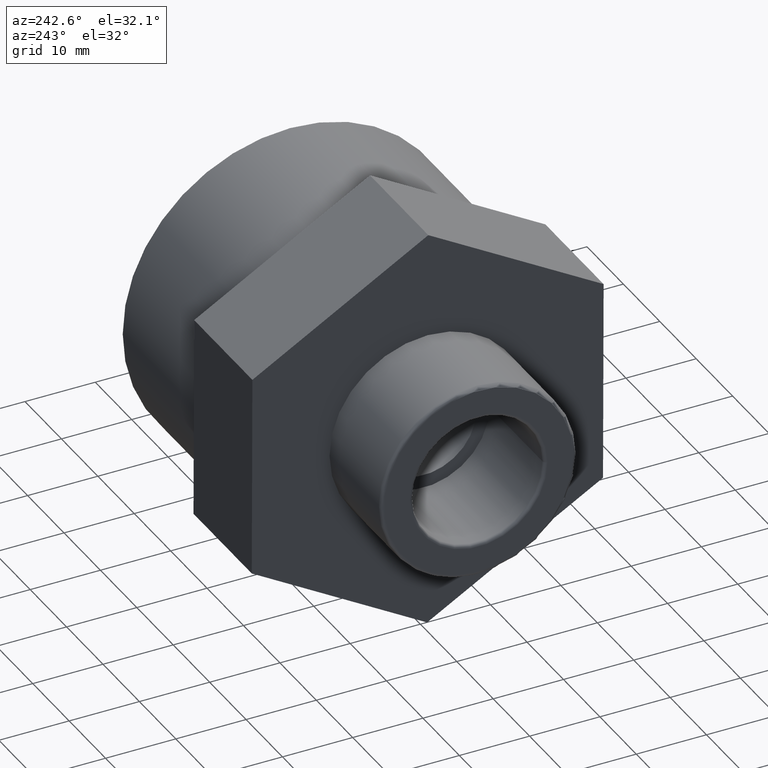
[diagram: clean part render]
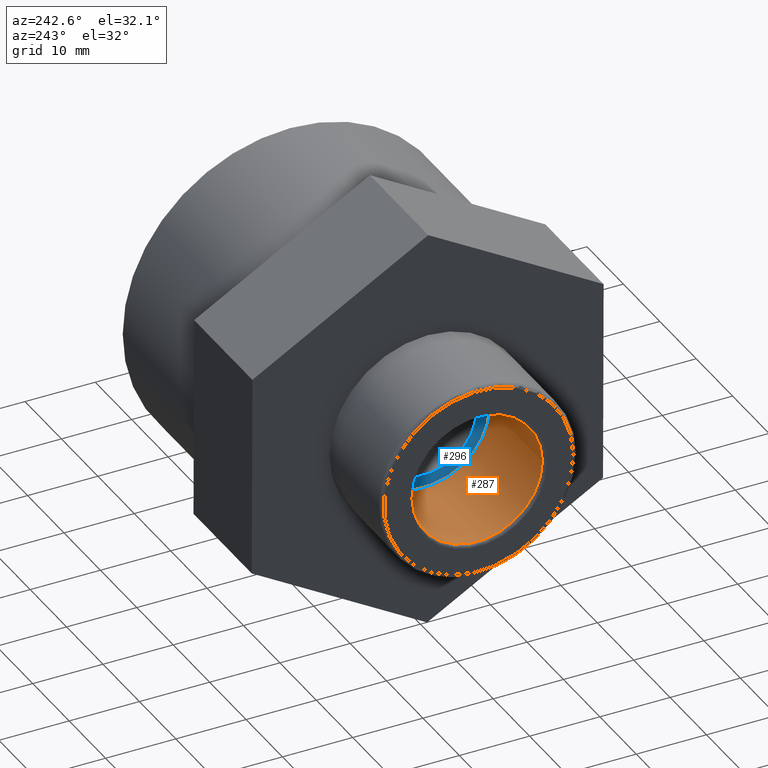
[diagram: same view with the hole feature highlighted: cylindrical wall and planar end face, labeled with their STEP entity ids]
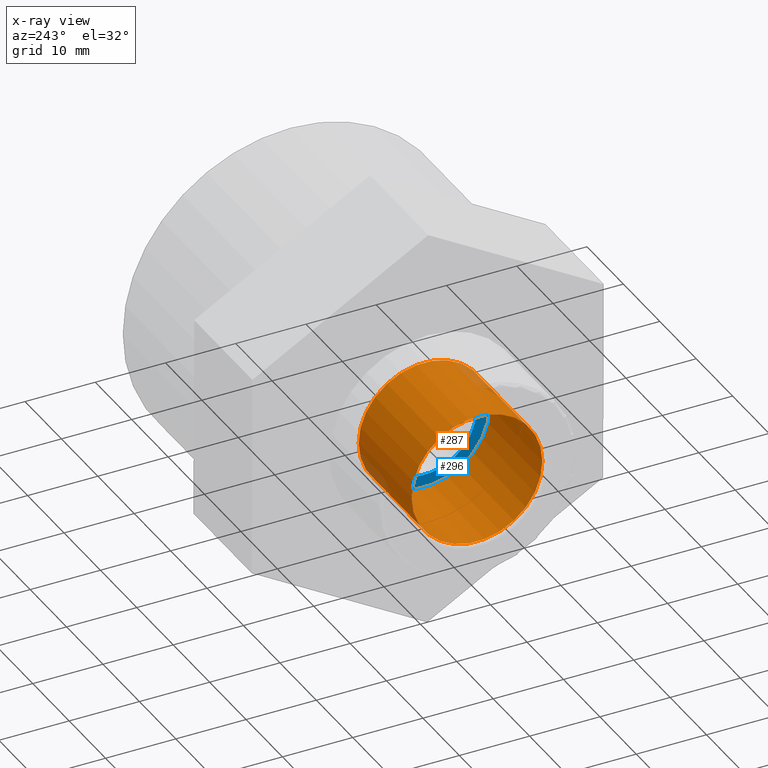
[diagram: x-ray of the same camera — body ghosted, the hole faces saturated]
A machine part, auxiliary view. The highlighted faces form one hole feature of diameter 18.631 mm: the cylindrical wall (entity #287, orange) and its adjacent planar end face (entity #296, blue) — they share a circular edge in the B-rep.
The next image is the same camera in x-ray (body ghosted, the hole faces saturated) — the bore reads through the body.
Wall:
#53=CYLINDRICAL_SURFACE('',#319,9.3155);
#75=FACE_BOUND('',#119,.T.);
#90=FACE_OUTER_BOUND('',#118,.T.);
#118=EDGE_LOOP('',(#226));
#119=EDGE_LOOP('',(#227));
#147=CIRCLE('',#316,9.3155);
#149=CIRCLE('',#320,9.3155);
#161=VERTEX_POINT('',#449);
#163=VERTEX_POINT('',#455);
#187=EDGE_CURVE('',#161,#161,#147,.T.);
#189=EDGE_CURVE('',#163,#163,#149,.T.);
#226=ORIENTED_EDGE('',*,*,#189,.F.);
#227=ORIENTED_EDGE('',*,*,#187,.F.);
#287=ADVANCED_FACE('',(#90,#75),#53,.F.);
#316=AXIS2_PLACEMENT_3D('',#450,#366,#367);
#319=AXIS2_PLACEMENT_3D('',#454,#372,#373);
#320=AXIS2_PLACEMENT_3D('',#456,#374,#375);
#366=DIRECTION('center_axis',(1.,1.83697019872103E-16,0.));
#367=DIRECTION('ref_axis',(-1.8621904095076E-16,1.,6.12323399573677E-17));
#372=DIRECTION('center_axis',(-1.,-1.83697019872103E-16,0.));
#373=DIRECTION('ref_axis',(2.38360372416973E-16,-1.,0.));
#374=DIRECTION('center_axis',(-1.,-1.83697019872103E-16,0.));
#375=DIRECTION('ref_axis',(0.,0.,1.));
#449=CARTESIAN_POINT('',(-25.52197,-9.3155,-1.71122958861858E-15));
#450=CARTESIAN_POINT('Origin',(-25.52197,8.78126864094603E-17,0.));
#454=CARTESIAN_POINT('Origin',(-18.5,1.37772764904077E-15,0.));
#455=CARTESIAN_POINT('',(-11.,-9.3155,0.));
#456=CARTESIAN_POINT('Origin',(-11.,2.75545529808154E-15,0.));
End face:
#64=PLANE('',#331);
#78=FACE_BOUND('',#131,.T.);
#99=FACE_OUTER_BOUND('',#130,.T.);
#130=EDGE_LOOP('',(#256));
#131=EDGE_LOOP('',(#257));
#149=CIRCLE('',#320,9.3155);
#152=CIRCLE('',#332,7.45240000000001);
#163=VERTEX_POINT('',#455);
#178=VERTEX_POINT('',#500);
#189=EDGE_CURVE('',#163,#163,#149,.T.);
#210=EDGE_CURVE('',#178,#178,#152,.T.);
#256=ORIENTED_EDGE('',*,*,#189,.T.);
#257=ORIENTED_EDGE('',*,*,#210,.F.);
#296=ADVANCED_FACE('',(#99,#78),#64,.T.);
#320=AXIS2_PLACEMENT_3D('',#456,#374,#375);
#331=AXIS2_PLACEMENT_3D('',#499,#414,#415);
#332=AXIS2_PLACEMENT_3D('',#501,#416,#417);
#374=DIRECTION('center_axis',(-1.,-1.83697019872103E-16,0.));
#375=DIRECTION('ref_axis',(0.,0.,1.));
#414=DIRECTION('center_axis',(-1.,-1.83697019872103E-16,0.));
#415=DIRECTION('ref_axis',(0.,0.,1.));
#416=DIRECTION('center_axis',(-1.,-1.83697019872103E-16,0.));
#417=DIRECTION('ref_axis',(0.,0.,1.));
#455=CARTESIAN_POINT('',(-11.,-9.3155,0.));
#456=CARTESIAN_POINT('Origin',(-11.,2.75545529808154E-15,0.));
#499=CARTESIAN_POINT('Origin',(-11.,-7.4524,0.));
#500=CARTESIAN_POINT('',(-11.,-7.4524,0.));
#501=CARTESIAN_POINT('Origin',(-11.,2.75545529808154E-15,0.));